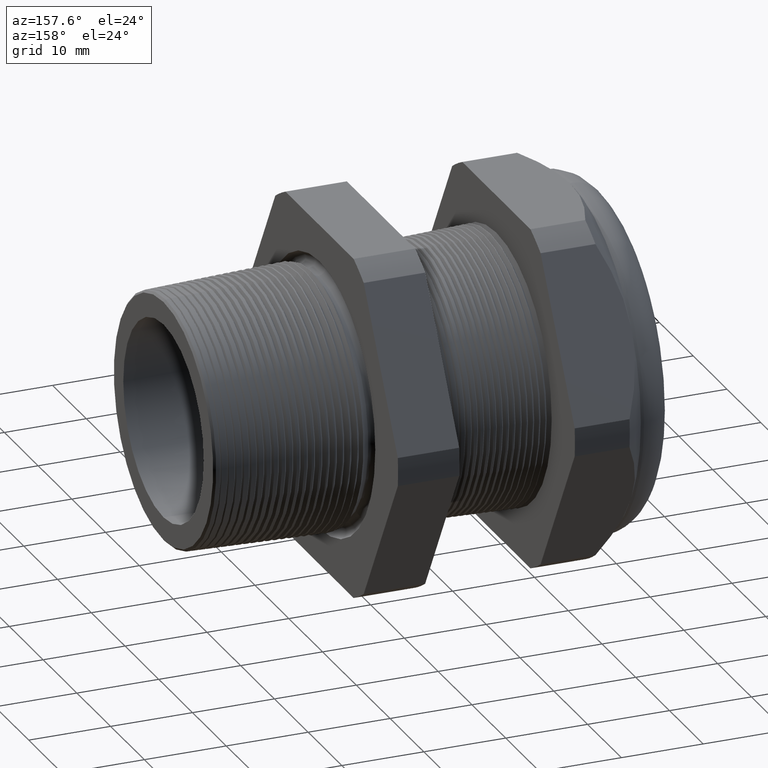
[diagram: clean part render]
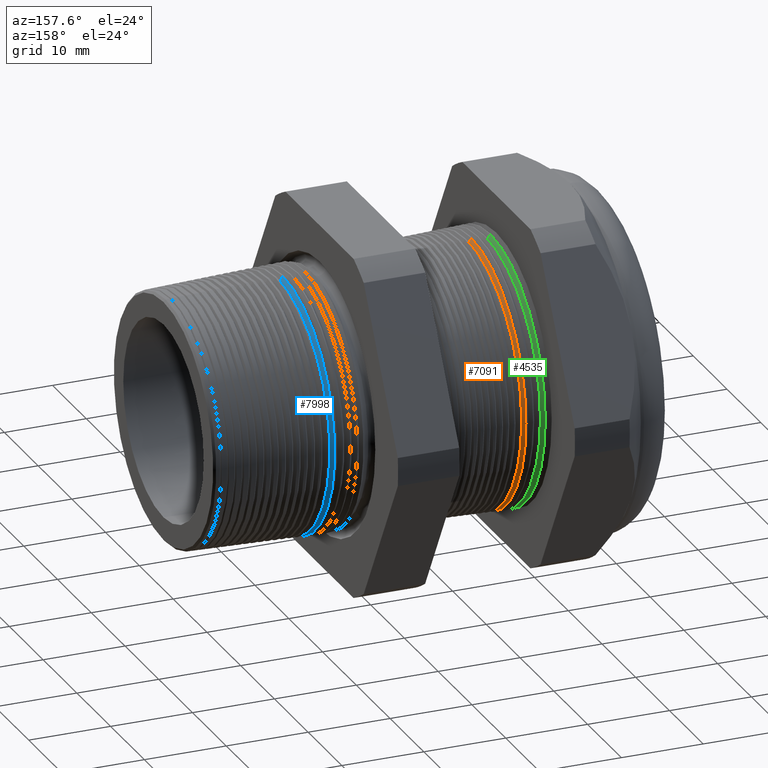
[diagram: same view with three faces highlighted in distinct colors, each labeled with its STEP entity id]
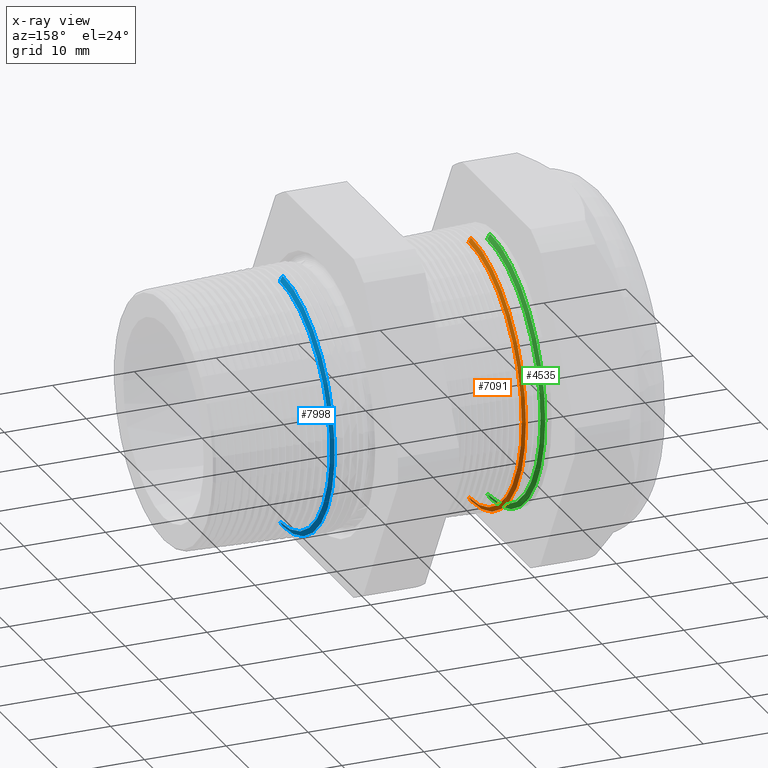
[diagram: x-ray of the same camera — body ghosted, the three highlighted faces saturated]
A machine part, auxiliary view with three faces highlighted in distinct colors.
The next image is the same camera in x-ray (body ghosted, the three faces saturated) — at least one of them is partly hidden behind the body in this view.
Their STEP definitions:

[orange] entity #7091 — the highlighted conical surface has half-angle 62 deg.
#1925 = DIRECTION ( 'NONE',  ( -0.4694715627859001900, 1.081298943409538900E-016, -0.8829475928589217700 ) ) ;
#2385 = CARTESIAN_POINT ( 'NONE',  ( -1.026762483972355700, 7.716754981204835700E-017, -0.6195114984791282300 ) ) ;
#2386 = DIRECTION ( 'NONE',  ( 0.0000000000000000000, 0.0000000000000000000, -1.000000000000000000 ) ) ;
#2387 = DIRECTION ( 'NONE',  ( 1.000000000000000000, 0.0000000000000000000, 0.0000000000000000000 ) ) ;
#2388 = CARTESIAN_POINT ( 'NONE',  ( -1.026762483972355700, 0.0000000000000000000, 0.0000000000000000000 ) ) ;
#2389 = AXIS2_PLACEMENT_3D ( 'NONE', #2388, #2387, #2386 ) ;
#2390 = CIRCLE ( 'NONE', #2389, 0.6195114984791282300 ) ;
#2391 = CARTESIAN_POINT ( 'NONE',  ( -1.026762483972355700, 0.0000000000000000000, 0.6195114984791282300 ) ) ;
#2404 = CARTESIAN_POINT ( 'NONE',  ( -1.038044682480699000, 7.847824558224601000E-017, -0.6407302278010599300 ) ) ;
#2424 = VECTOR ( 'NONE', #1925, 39.37007874015748900 ) ;
#2425 = CARTESIAN_POINT ( 'NONE',  ( -1.040314960629921600, 7.898971854500428000E-017, -0.6449999999999999100 ) ) ;
#2426 = LINE ( 'NONE', #2425, #2424 ) ;
#2429 = DIRECTION ( 'NONE',  ( 0.0000000000000000000, 0.0000000000000000000, 1.000000000000000000 ) ) ;
#2430 = DIRECTION ( 'NONE',  ( 1.000000000000000000, 0.0000000000000000000, 0.0000000000000000000 ) ) ;
#2431 = CARTESIAN_POINT ( 'NONE',  ( -1.038044682480699000, 0.0000000000000000000, 0.0000000000000000000 ) ) ;
#2432 = AXIS2_PLACEMENT_3D ( 'NONE', #2431, #2430, #2429 ) ;
#2433 = CIRCLE ( 'NONE', #2432, 0.6407302278010599300 ) ;
#2435 = CARTESIAN_POINT ( 'NONE',  ( -1.038044682480699000, 0.0000000000000000000, 0.6407302278010599300 ) ) ;
#2479 = DIRECTION ( 'NONE',  ( 0.0000000000000000000, 0.0000000000000000000, 1.000000000000000000 ) ) ;
#2480 = DIRECTION ( 'NONE',  ( -1.000000000000000000, 0.0000000000000000000, 0.0000000000000000000 ) ) ;
#2481 = CARTESIAN_POINT ( 'NONE',  ( -1.040314960629921600, 0.0000000000000000000, 0.0000000000000000000 ) ) ;
#2482 = AXIS2_PLACEMENT_3D ( 'NONE', #2481, #2480, #2479 ) ;
#2483 = CONICAL_SURFACE ( 'NONE', #2482, 0.6449999999999999100, 1.082104136236473600 ) ;
#2485 = FACE_OUTER_BOUND ( 'NONE', #7083, .T. ) ;
#2547 = DIRECTION ( 'NONE',  ( -0.4694715627859001900, 0.0000000000000000000, 0.8829475928589217700 ) ) ;
#2548 = VECTOR ( 'NONE', #2547, 39.37007874015748900 ) ;
#2549 = CARTESIAN_POINT ( 'NONE',  ( -1.040314960629921600, 0.0000000000000000000, 0.6449999999999999100 ) ) ;
#2550 = LINE ( 'NONE', #2549, #2548 ) ;
#7042 = VERTEX_POINT ( 'NONE', #2391 ) ;
#7043 = EDGE_CURVE ( 'NONE', #7045, #7042, #2390, .T. ) ;
#7045 = VERTEX_POINT ( 'NONE', #2385 ) ;
#7064 = ORIENTED_EDGE ( 'NONE', *, *, #7079, .T. ) ;
#7067 = VERTEX_POINT ( 'NONE', #2404 ) ;
#7076 = VERTEX_POINT ( 'NONE', #2435 ) ;
#7077 = ORIENTED_EDGE ( 'NONE', *, *, #7119, .F. ) ;
#7079 = EDGE_CURVE ( 'NONE', #7067, #7076, #2433, .T. ) ;
#7083 = EDGE_LOOP ( 'NONE', ( #7085, #7084, #7064, #7077 ) ) ;
#7084 = ORIENTED_EDGE ( 'NONE', *, *, #7086, .T. ) ;
#7085 = ORIENTED_EDGE ( 'NONE', *, *, #7043, .F. ) ;
#7086 = EDGE_CURVE ( 'NONE', #7045, #7067, #2426, .T. ) ;
#7091 = ADVANCED_FACE ( 'NONE', ( #2485 ), #2483, .T. ) ;
#7119 = EDGE_CURVE ( 'NONE', #7042, #7076, #2550, .T. ) ;

[blue] entity #7998 — the highlighted conical surface has half-angle 62 deg.
#171 = VERTEX_POINT ( 'NONE', #6151 ) ;
#172 = VERTEX_POINT ( 'NONE', #6150 ) ;
#173 = EDGE_CURVE ( 'NONE', #172, #171, #6149, .T. ) ;
#4170 = DIRECTION ( 'NONE',  ( -0.4694715627859021900, 1.081298943409537900E-016, -0.8829475928589208800 ) ) ;
#4171 = VECTOR ( 'NONE', #4170, 39.37007874015748100 ) ;
#4172 = CARTESIAN_POINT ( 'NONE',  ( -0.1349999999999999500, 7.535329486724755800E-017, -0.6153063472644639800 ) ) ;
#4173 = LINE ( 'NONE', #4172, #4171 ) ;
#4178 = CARTESIAN_POINT ( 'NONE',  ( -0.1316891776990506400, 7.460502277879633900E-017, -0.6090795961410099300 ) ) ;
#4215 = DIRECTION ( 'NONE',  ( 0.0000000000000000000, 0.0000000000000000000, 1.000000000000000000 ) ) ;
#4216 = DIRECTION ( 'NONE',  ( -1.000000000000000000, 0.0000000000000000000, 0.0000000000000000000 ) ) ;
#4217 = CARTESIAN_POINT ( 'NONE',  ( -0.1349999999999999500, 0.0000000000000000000, 0.0000000000000000000 ) ) ;
#4218 = AXIS2_PLACEMENT_3D ( 'NONE', #4217, #4216, #4215 ) ;
#4219 = CONICAL_SURFACE ( 'NONE', #4218, 0.6153063472644639800, 1.082104136236471400 ) ;
#4221 = FACE_OUTER_BOUND ( 'NONE', #8002, .T. ) ;
#4276 = CARTESIAN_POINT ( 'NONE',  ( -0.1316891776990506400, 0.0000000000000000000, 0.6090795961410099300 ) ) ;
#4277 = DIRECTION ( 'NONE',  ( -0.4694715627859021900, 0.0000000000000000000, 0.8829475928589208800 ) ) ;
#4278 = VECTOR ( 'NONE', #4277, 39.37007874015748100 ) ;
#4279 = CARTESIAN_POINT ( 'NONE',  ( -0.1349999999999999500, 0.0000000000000000000, 0.6153063472644639800 ) ) ;
#4280 = LINE ( 'NONE', #4279, #4278 ) ;
#4281 = DIRECTION ( 'NONE',  ( 0.0000000000000000000, 0.0000000000000000000, 1.000000000000000000 ) ) ;
#4282 = DIRECTION ( 'NONE',  ( 1.000000000000000000, 0.0000000000000000000, 0.0000000000000000000 ) ) ;
#4283 = CARTESIAN_POINT ( 'NONE',  ( -0.1316891776990506400, 0.0000000000000000000, 0.0000000000000000000 ) ) ;
#4284 = AXIS2_PLACEMENT_3D ( 'NONE', #4283, #4282, #4281 ) ;
#4285 = CIRCLE ( 'NONE', #4284, 0.6090795961410099300 ) ;
#6145 = DIRECTION ( 'NONE',  ( 0.0000000000000000000, 0.0000000000000000000, -1.000000000000000000 ) ) ;
#6146 = DIRECTION ( 'NONE',  ( 1.000000000000000000, 0.0000000000000000000, 0.0000000000000000000 ) ) ;
#6147 = CARTESIAN_POINT ( 'NONE',  ( -0.1187370280109210400, 0.0000000000000000000, 0.0000000000000000000 ) ) ;
#6148 = AXIS2_PLACEMENT_3D ( 'NONE', #6147, #6146, #6145 ) ;
#6149 = CIRCLE ( 'NONE', #6148, 0.5847201454394180800 ) ;
#6150 = CARTESIAN_POINT ( 'NONE',  ( -0.1187370280109210400, 7.309915161747042800E-017, -0.5847201454394180800 ) ) ;
#6151 = CARTESIAN_POINT ( 'NONE',  ( -0.1187370280109210400, 0.0000000000000000000, 0.5847201454394180800 ) ) ;
#7985 = ORIENTED_EDGE ( 'NONE', *, *, #8032, .T. ) ;
#7989 = VERTEX_POINT ( 'NONE', #4178 ) ;
#7991 = EDGE_CURVE ( 'NONE', #172, #7989, #4173, .T. ) ;
#7997 = ORIENTED_EDGE ( 'NONE', *, *, #7991, .T. ) ;
#7998 = ADVANCED_FACE ( 'NONE', ( #4221 ), #4219, .T. ) ;
#7999 = ORIENTED_EDGE ( 'NONE', *, *, #173, .F. ) ;
#8002 = EDGE_LOOP ( 'NONE', ( #7999, #7997, #7985, #8036 ) ) ;
#8032 = EDGE_CURVE ( 'NONE', #7989, #8034, #4285, .T. ) ;
#8033 = EDGE_CURVE ( 'NONE', #171, #8034, #4280, .T. ) ;
#8034 = VERTEX_POINT ( 'NONE', #4276 ) ;
#8036 = ORIENTED_EDGE ( 'NONE', *, *, #8033, .F. ) ;

[green] entity #4535 — the highlighted conical surface has half-angle 62 deg.
#348 = VERTEX_POINT ( 'NONE', #6475 ) ;
#350 = ORIENTED_EDGE ( 'NONE', *, *, #353, .T. ) ;
#352 = VERTEX_POINT ( 'NONE', #6537 ) ;
#353 = EDGE_CURVE ( 'NONE', #352, #348, #6532, .T. ) ;
#354 = ORIENTED_EDGE ( 'NONE', *, *, #7200, .F. ) ;
#356 = ORIENTED_EDGE ( 'NONE', *, *, #357, .T. ) ;
#357 = EDGE_CURVE ( 'NONE', #7184, #352, #6525, .T. ) ;
#358 = EDGE_LOOP ( 'NONE', ( #354, #356, #350, #4532 ) ) ;
#2656 = DIRECTION ( 'NONE',  ( 0.0000000000000000000, 0.0000000000000000000, -1.000000000000000000 ) ) ;
#2657 = DIRECTION ( 'NONE',  ( 1.000000000000000000, 0.0000000000000000000, 0.0000000000000000000 ) ) ;
#2658 = CARTESIAN_POINT ( 'NONE',  ( -1.116762483972355800, 0.0000000000000000000, 0.0000000000000000000 ) ) ;
#2659 = AXIS2_PLACEMENT_3D ( 'NONE', #2658, #2657, #2656 ) ;
#2660 = CIRCLE ( 'NONE', #2659, 0.6195114984791282300 ) ;
#2671 = CARTESIAN_POINT ( 'NONE',  ( -1.116762483972355800, 0.0000000000000000000, 0.6195114984791282300 ) ) ;
#2679 = CARTESIAN_POINT ( 'NONE',  ( -1.116762483972355800, 7.736363591916787100E-017, -0.6195114984791282300 ) ) ;
#4532 = ORIENTED_EDGE ( 'NONE', *, *, #4574, .F. ) ;
#4535 = ADVANCED_FACE ( 'NONE', ( #6884 ), #6882, .T. ) ;
#4574 = EDGE_CURVE ( 'NONE', #7189, #348, #6993, .T. ) ;
#6475 = CARTESIAN_POINT ( 'NONE',  ( -1.129747391092615900, 0.0000000000000000000, 0.6439325569502648600 ) ) ;
#6518 = DIRECTION ( 'NONE',  ( -0.4694715627859001900, 1.081298943409538900E-016, -0.8829475928589217700 ) ) ;
#6519 = VECTOR ( 'NONE', #6518, 39.37007874015748900 ) ;
#6520 = CARTESIAN_POINT ( 'NONE',  ( -1.130314960629921700, 7.898971854500428000E-017, -0.6449999999999999100 ) ) ;
#6525 = LINE ( 'NONE', #6520, #6519 ) ;
#6528 = DIRECTION ( 'NONE',  ( 0.0000000000000000000, 0.0000000000000000000, 1.000000000000000000 ) ) ;
#6529 = DIRECTION ( 'NONE',  ( 1.000000000000000000, 0.0000000000000000000, 0.0000000000000000000 ) ) ;
#6530 = CARTESIAN_POINT ( 'NONE',  ( -1.129747391092615900, 0.0000000000000000000, 0.0000000000000000000 ) ) ;
#6531 = AXIS2_PLACEMENT_3D ( 'NONE', #6530, #6529, #6528 ) ;
#6532 = CIRCLE ( 'NONE', #6531, 0.6439325569502648600 ) ;
#6537 = CARTESIAN_POINT ( 'NONE',  ( -1.129747391092615900, 7.886266727255338200E-017, -0.6439325569502648600 ) ) ;
#6881 = CARTESIAN_POINT ( 'NONE',  ( -1.130314960629921700, 0.0000000000000000000, 0.0000000000000000000 ) ) ;
#6882 = CONICAL_SURFACE ( 'NONE', #6943, 0.6449999999999999100, 1.082104136236473600 ) ;
#6884 = FACE_OUTER_BOUND ( 'NONE', #358, .T. ) ;
#6941 = DIRECTION ( 'NONE',  ( 0.0000000000000000000, 0.0000000000000000000, 1.000000000000000000 ) ) ;
#6942 = DIRECTION ( 'NONE',  ( -1.000000000000000000, 0.0000000000000000000, 0.0000000000000000000 ) ) ;
#6943 = AXIS2_PLACEMENT_3D ( 'NONE', #6881, #6942, #6941 ) ;
#6990 = DIRECTION ( 'NONE',  ( -0.4694715627859001900, 0.0000000000000000000, 0.8829475928589217700 ) ) ;
#6991 = VECTOR ( 'NONE', #6990, 39.37007874015748900 ) ;
#6992 = CARTESIAN_POINT ( 'NONE',  ( -1.130314960629921700, 0.0000000000000000000, 0.6449999999999999100 ) ) ;
#6993 = LINE ( 'NONE', #6992, #6991 ) ;
#7184 = VERTEX_POINT ( 'NONE', #2679 ) ;
#7189 = VERTEX_POINT ( 'NONE', #2671 ) ;
#7200 = EDGE_CURVE ( 'NONE', #7184, #7189, #2660, .T. ) ;